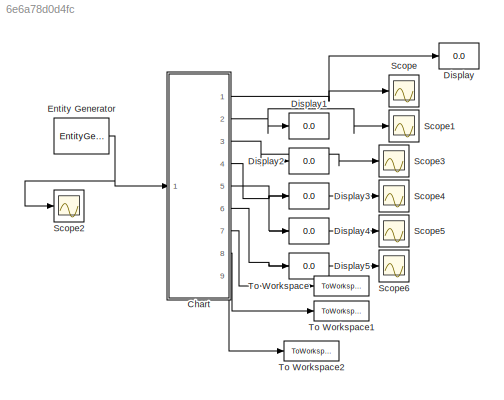
MODEL slx_6e6a78d0d4fc
KIND model
CONFIG AbsTol = auto
CONFIG EnableMultiTasking = off
CONFIG FixedStep = auto
CONFIG MaxStep = auto
CONFIG MinStep = auto
CONFIG RelTol = 1e-3
CONFIG SampleTimeConstraint = Unconstrained
CONFIG SolverName = VariableStepAuto
CONFIG StartTime = 0.0
CONFIG StopTime = 60
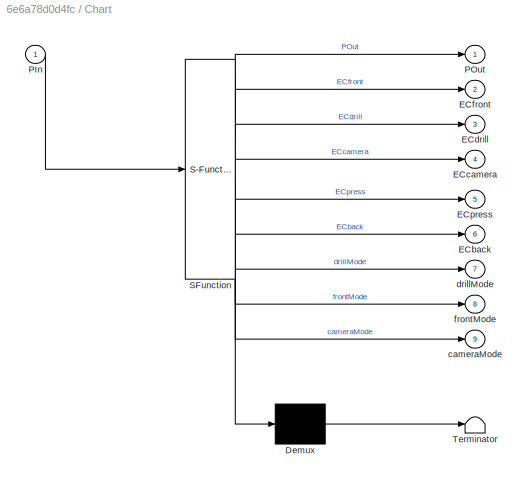
BLOCK [SubSystem] Chart
  ErrorFcn = Stateflow.Translate.translate
  PermitHierarchicalResolution = ExplicitOnly
  Ports = [1, 9]
  RequestExecContextInheritance = off
  SFBlockType = Chart
  TreatAsAtomicUnit = on
BLOCK [Demux] Chart/ Demux 
  Outputs = 1
  Ports = [1, 1]
BLOCK [S-Function] Chart/ SFunction 
  EnableBusSupport = on
  FunctionName = sf_sfun
  InputPortMessageModes = m
  PortCounts = [1 10]
  Ports = [1, 10]
  SFcnIsStateOwnerBlock = off
  SFunctionDeploymentMode = off
  Tag = Stateflow S-Function 3
BLOCK [Terminator] Chart/ Terminator 
BLOCK [Outport] Chart/ cameraMode
  Port = 9
BLOCK [Outport] Chart/ drillMode
  Port = 7
BLOCK [Outport] Chart/ frontMode
  Port = 8
BLOCK [Outport] Chart/ECback
  Port = 6
BLOCK [Outport] Chart/ECcamera
  Port = 4
BLOCK [Outport] Chart/ECdrill
  Port = 3
BLOCK [Outport] Chart/ECfront
  Port = 2
BLOCK [Outport] Chart/ECpress
  Port = 5
BLOCK [Inport] Chart/PIn
BLOCK [Outport] Chart/POut
BLOCK [Display] Display
  Decimation = 1
  Ports = [1]
BLOCK [Display] Display1
  Decimation = 1
  Ports = [1]
BLOCK [Display] Display2
  Decimation = 1
  Ports = [1]
BLOCK [Display] Display3
  Decimation = 1
  Ports = [1]
BLOCK [Display] Display4
  Decimation = 1
  Ports = [1]
BLOCK [Display] Display5
  Decimation = 1
  Ports = [1]
BLOCK [EntityGenerator] Entity Generator
  EntityType = Structured
  EntityTypeName = Entity
  GenerateEntityAtSimulationStart = off
  OutputPortMap = o3
  OutputPortMessageModes = m
  Period = 5
  Ports = [0, 1]
BLOCK [Scope] Scope
  Floating = off
  NumInputPorts = 1
  Ports = [1]
  ScopeSpecificationString = Simulink.scopes.TimeScopeBlockCfg('CurrentConfiguration', extmgr.ConfigurationSet(extmgr.Configuration('Core','General UI',true),extmgr.Configuration('Core','Source UI',true),extmgr.Configuration('Sources','WiredSimulink',true),extmgr.Configuration('Visuals','Time Domain',true,'SerializedDisplays',{struct('MinYLimReal','-10','MaxYLimReal','10','YLabelReal','','MinYLimMag','0','MaxYLimMag','10','Le...<+797ch>
BLOCK [Scope] Scope1
  Floating = off
  NumInputPorts = 1
  Ports = [1]
  ScopeSpecificationString = Simulink.scopes.TimeScopeBlockCfg('CurrentConfiguration', extmgr.ConfigurationSet(extmgr.Configuration('Core','General UI',true),extmgr.Configuration('Core','Source UI',true),extmgr.Configuration('Sources','WiredSimulink',true,'DataLoggingVariableName','ScopeData1'),extmgr.Configuration('Visuals','Time Domain',true,'SerializedDisplays',{struct('MinYLimReal','-221.40492','MaxYLimReal','1194.60434',...<+1515ch>
BLOCK [Scope] Scope2
  Floating = off
  NumInputPorts = 1
  Ports = [1]
  ScopeSpecificationString = Simulink.scopes.TimeScopeBlockCfg('CurrentConfiguration', extmgr.ConfigurationSet(extmgr.Configuration('Core','General UI',true),extmgr.Configuration('Core','Source UI',true),extmgr.Configuration('Sources','WiredSimulink',true,'DataLoggingVariableName','ScopeData2'),extmgr.Configuration('Visuals','Time Domain',true,'SerializedDisplays',{struct('MinYLimReal','-0.125','MaxYLimReal','1.125','YLabelRe...<+1429ch>
BLOCK [Scope] Scope3
  Floating = off
  NumInputPorts = 1
  Ports = [1]
  ScopeSpecificationString = Simulink.scopes.TimeScopeBlockCfg('CurrentConfiguration', extmgr.ConfigurationSet(extmgr.Configuration('Core','General UI',true),extmgr.Configuration('Core','Source UI',true),extmgr.Configuration('Sources','WiredSimulink',true,'DataLoggingVariableName','ScopeData2'),extmgr.Configuration('Visuals','Time Domain',true,'SerializedDisplays',{struct('MinYLimReal','-221.40492','MaxYLimReal','1194.60434',...<+1541ch>
BLOCK [Scope] Scope4
  Floating = off
  NumInputPorts = 1
  Ports = [1]
  ScopeSpecificationString = Simulink.scopes.TimeScopeBlockCfg('CurrentConfiguration', extmgr.ConfigurationSet(extmgr.Configuration('Core','General UI',true),extmgr.Configuration('Core','Source UI',true),extmgr.Configuration('Sources','WiredSimulink',true,'DataLoggingVariableName','ScopeData3'),extmgr.Configuration('Visuals','Time Domain',true,'SerializedDisplays',{struct('MinYLimReal','-221.40492','MaxYLimReal','1194.60434',...<+1541ch>
BLOCK [Scope] Scope5
  Floating = off
  NumInputPorts = 1
  Ports = [1]
  ScopeSpecificationString = Simulink.scopes.TimeScopeBlockCfg('CurrentConfiguration', extmgr.ConfigurationSet(extmgr.Configuration('Core','General UI',true),extmgr.Configuration('Core','Source UI',true),extmgr.Configuration('Sources','WiredSimulink',true,'DataLoggingVariableName','ScopeData4'),extmgr.Configuration('Visuals','Time Domain',true,'SerializedDisplays',{struct('MinYLimReal','-221.40492','MaxYLimReal','1194.60434',...<+1541ch>
BLOCK [Scope] Scope6
  Floating = off
  NumInputPorts = 1
  Ports = [1]
  ScopeSpecificationString = Simulink.scopes.TimeScopeBlockCfg('CurrentConfiguration', extmgr.ConfigurationSet(extmgr.Configuration('Core','General UI',true),extmgr.Configuration('Core','Source UI',true),extmgr.Configuration('Sources','WiredSimulink',true,'DataLoggingVariableName','ScopeData5'),extmgr.Configuration('Visuals','Time Domain',true,'SerializedDisplays',{struct('MinYLimReal','-221.40492','MaxYLimReal','1194.60434',...<+1541ch>
BLOCK [ToWorkspace] To Workspace
  FixptAsFi = on
  MaxDataPoints = inf
  Ports = [1]
  SampleTime = -1
  SaveFormat = Timeseries
  VariableName = drill
BLOCK [ToWorkspace] To Workspace1
  FixptAsFi = on
  MaxDataPoints = inf
  Ports = [1]
  SampleTime = -1
  SaveFormat = Timeseries
  VariableName = front
BLOCK [ToWorkspace] To Workspace2
  FixptAsFi = on
  MaxDataPoints = inf
  Ports = [1]
  SampleTime = -1
  SaveFormat = Timeseries
  VariableName = camera
NET Chart:1 -> Display:1, Scope:1
NET Chart:2 -> Display1:1, Scope1:1
NET Chart:3 -> Display2:1, Scope3:1
NET Chart:4 -> Display3:1, Scope4:1
NET Chart:5 -> Display4:1, Scope5:1
NET Chart:6 -> Display5:1, Scope6:1
LINE Chart:7 -> To Workspace:1
LINE Chart:8 -> To Workspace1:1
LINE Chart:9 -> To Workspace2:1
NET Entity Generator:1 -> Chart:1, Scope2:1
note: NET lines group one-source signal fan-out (src -> all destinations, sorted); 1:1 wires keep LINE
CHART Chart states=19 transitions=15
  STATE_LABEL 'y = eFront(a,b)'
  STATE_LABEL 'SCRIPT:\nfunction y = eFront(a,b)\ny=integral(@(x) -0.000516*x.^4+0.0277*x.^3-0.473*x.^2+2.77*x+47,a,b);\nend\n'
  STATE_LABEL 'y = ePress(a,b)'
  STATE_LABEL 'SCRIPT:\nfunction y = ePress(a,b)\ny=integral(@(x) -0.000516*x.^4+0.0277*x.^3-0.473*x.^2+2.77*x+47,a,b);\nend\n'
  STATE_LABEL 'y = eCamera(a,b)'
  STATE_LABEL 'SCRIPT:\nfunction y = eCamera(a,b)\ny=integral(@(x) -0.000516*x.^4+0.0277*x.^3-0.473*x.^2+2.77*x+47,a,b);\nend\n'
  STATE_LABEL 'back'
  STATE_LABEL 'Idle\nentry:\nprocessing=0;\n'
  STATE_LABEL 'Working\nentry:\nprocessing=1;\nexit:\nECback=eFront(0,CTback)+ECback;\nCounter=Counter+1\n'
  STATE_LABEL 'Pin{press.queue=press.queue-1}'
  STATE_LABEL 'after(CTback,sec){queue=queue+1}/{POut=POut+1}'
  STATE_LABEL 'Idle\nentry:\nprocessing=0;\n'
  STATE_LABEL 'Working\nentry:\nprocessing=1;\nexit:\nECback=eFront(0,CTback)+ECback;\nCounter=Counter+1\n'
  STATE_LABEL 'press'
  STATE_LABEL 'Idle\nentry:\nprocessing=0;\n'
  STATE_LABEL 'Working\nentry:\nprocessing=1;\nexit:\nECpress=ePress(0,CTpress)+ECpress;\nCounter=Counter+1\n'
  STATE_LABEL 'Pin{camera.queue=camera.queue-1}'
  STATE_LABEL 'after(CTpress,sec){queue=queue+1}/{back.Pin}'
  STATE_LABEL 'Idle\nentry:\nprocessing=0;\n'
  STATE_LABEL 'Working\nentry:\nprocessing=1;\nexit:\nECpress=ePress(0,CTpress)+ECpress;\nCounter=Counter+1\n'
  STATE_LABEL 'camera'
  STATE_LABEL 'Idle\nentry:\nprocessing=0;\n'
  STATE_LABEL 'Working\nentry:\nprocessing=1;\nexit:\nECcamera=eCamera(0,CTcamera)+ECcamera;\nCounter=Counter+1\n'
  STATE_LABEL 'Pin{drill.queue=drill.queue-1}'
  STATE_LABEL 'after(CTcamera,sec){queue=queue+1}/{press.Pin}'
  STATE_LABEL 'Idle\nentry:\nprocessing=0;\n'
  STATE_LABEL 'Working\nentry:\nprocessing=1;\nexit:\nECcamera=eCamera(0,CTcamera)+ECcamera;\nCounter=Counter+1\n'
  STATE_LABEL 'drill'
  STATE_LABEL 'Idle\nentry:\nprocessing=0;\n'
  STATE_LABEL 'Working\nentry:\nprocessing=1;\nexit:\nECdrill=eDrill(0,CTdrill)+ECdrill;\nCounter=Counter+1\n'
  STATE_LABEL 'Pin{front.queue=front.queue-1}'
  STATE_LABEL 'after(CTdrill,sec){queue=queue+1}/{camera.Pin}'
  STATE_LABEL 'Idle\nentry:\nprocessing=0;\n'
  STATE_LABEL 'Working\nentry:\nprocessing=1;\nexit:\nECdrill=eDrill(0,CTdrill)+ECdrill;\nCounter=Counter+1\n'
  STATE_LABEL 'front'
  STATE_LABEL 'Working\nentry:\nprocessing=1;\nexit:\nECfront=ePress(0,CTfront)+ECfront;\nCounter=Counter+1\n'
  STATE_LABEL 'Idle\nentry:\nprocessing=0;\n'
  STATE_LABEL 'PIn'
  STATE_LABEL 'after(CTfront,sec){queue=queue+1}/{drill.Pin}'
  STATE_LABEL 'Working\nentry:\nprocessing=1;\nexit:\nECfront=ePress(0,CTfront)+ECfront;\nCounter=Counter+1\n'
CHART  states=0 transitions=0
